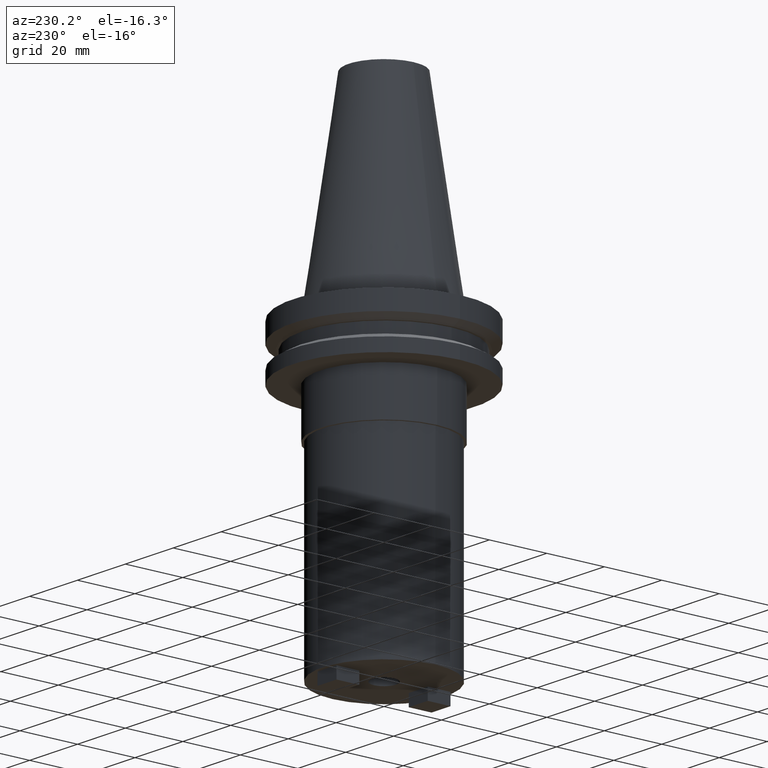
[diagram: clean part render]
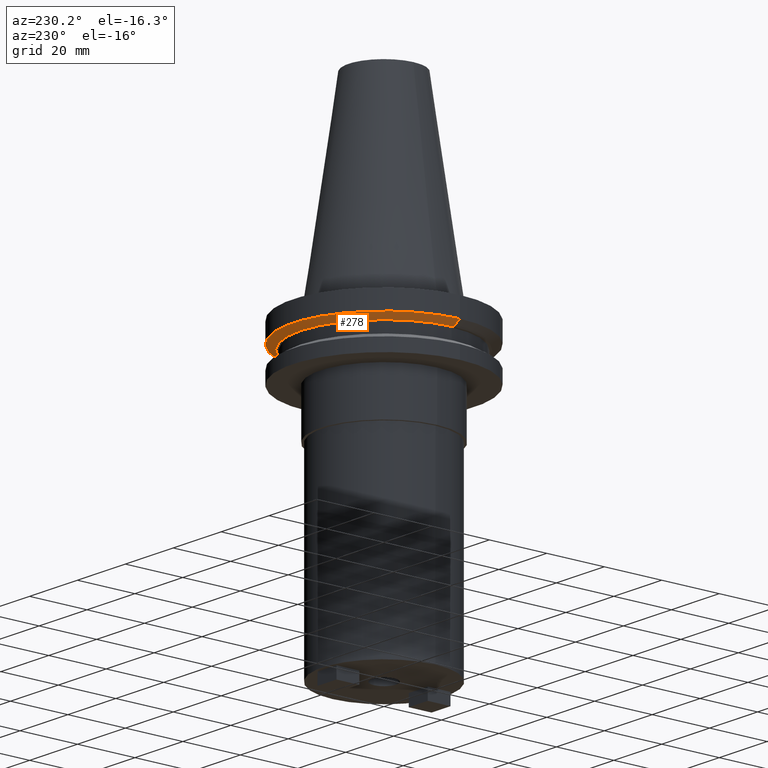
[diagram: same view with one face highlighted and labeled with its STEP entity id]
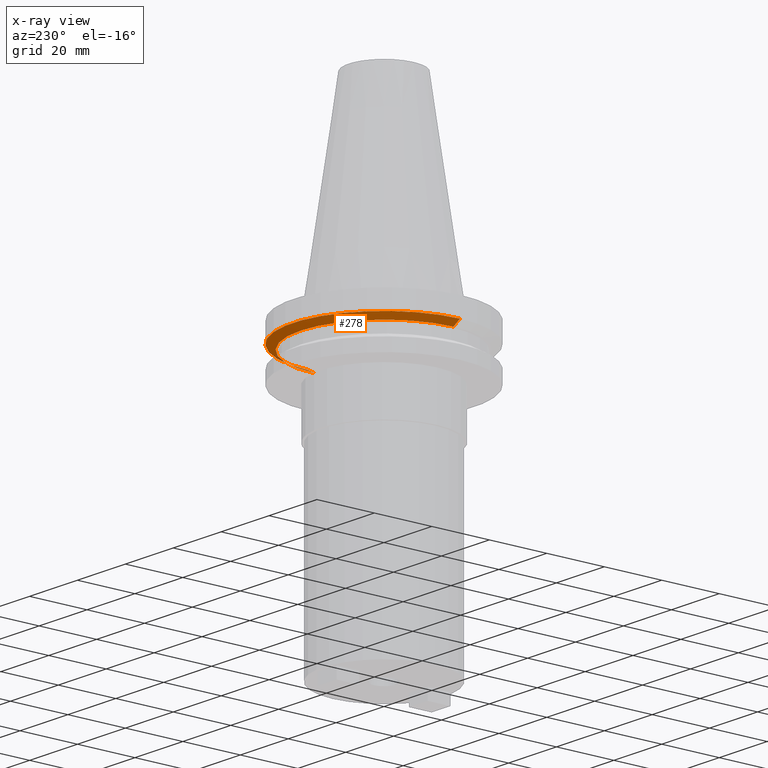
[diagram: x-ray of the same camera — body ghosted, the highlighted face saturated]
A machine part, auxiliary view. The second image highlights one B-rep face of the part: STEP entity #278.
The next image is the same camera in x-ray: the body ghosted, the highlighted face saturated — about 2% of this face is hidden behind the body in this view.
In plain terms, the highlighted conical surface has half-angle 60 deg.
Its self-contained STEP definition (entity closure, byte-faithful):
#8 = LINE ( 'NONE', #740, #287 ) ;
#82 = ORIENTED_EDGE ( 'NONE', *, *, #423, .T. ) ;
#159 = CIRCLE ( 'NONE', #1026, 28.97919780457007732 ) ;
#178 = VERTEX_POINT ( 'NONE', #234 ) ;
#198 = CARTESIAN_POINT ( 'NONE',  ( -28.97919780457007732, 3.718590885307660666E-15, -9.205000000000005400 ) ) ;
#213 = DIRECTION ( 'NONE',  ( 1.000000000000000000, 0.000000000000000000, 0.000000000000000000 ) ) ;
#219 = CARTESIAN_POINT ( 'NONE',  ( -31.75000000000000000, 3.888253587292846476E-15, -7.605276606597335842 ) ) ;
#234 = CARTESIAN_POINT ( 'NONE',  ( 31.75000000000000000, 0.000000000000000000, -7.605276606597335842 ) ) ;
#254 = CARTESIAN_POINT ( 'NONE',  ( 0.000000000000000000, 0.000000000000000000, -9.205000000000005400 ) ) ;
#268 = AXIS2_PLACEMENT_3D ( 'NONE', #254, #586, #920 ) ;
#276 = EDGE_CURVE ( 'NONE', #610, #178, #8, .T. ) ;
#278 = ADVANCED_FACE ( 'NONE', ( #1012 ), #838, .T. ) ;
#287 = VECTOR ( 'NONE', #341, 1000.000000000000000 ) ;
#295 = CARTESIAN_POINT ( 'NONE',  ( 0.000000000000000000, 0.000000000000000000, -9.205000000000005400 ) ) ;
#326 = EDGE_LOOP ( 'NONE', ( #82, #1074, #352, #488 ) ) ;
#341 = DIRECTION ( 'NONE',  ( 0.8660254037844389297, 0.000000000000000000, 0.4999999999999995004 ) ) ;
#352 = ORIENTED_EDGE ( 'NONE', *, *, #914, .F. ) ;
#358 = VERTEX_POINT ( 'NONE', #198 ) ;
#423 = EDGE_CURVE ( 'NONE', #610, #358, #159, .T. ) ;
#488 = ORIENTED_EDGE ( 'NONE', *, *, #276, .F. ) ;
#496 = VERTEX_POINT ( 'NONE', #219 ) ;
#498 = CARTESIAN_POINT ( 'NONE',  ( 0.000000000000000000, 0.000000000000000000, -7.605276606597335842 ) ) ;
#562 = AXIS2_PLACEMENT_3D ( 'NONE', #498, #682, #621 ) ;
#564 = DIRECTION ( 'NONE',  ( -0.8660254037844389297, 1.060575238724907285E-16, 0.4999999999999995004 ) ) ;
#585 = LINE ( 'NONE', #902, #726 ) ;
#586 = DIRECTION ( 'NONE',  ( -0.000000000000000000, -0.000000000000000000, 1.000000000000000000 ) ) ;
#610 = VERTEX_POINT ( 'NONE', #986 ) ;
#617 = EDGE_CURVE ( 'NONE', #358, #496, #585, .T. ) ;
#621 = DIRECTION ( 'NONE',  ( 1.000000000000000000, 0.000000000000000000, 0.000000000000000000 ) ) ;
#680 = CIRCLE ( 'NONE', #562, 31.75000000000000000 ) ;
#682 = DIRECTION ( 'NONE',  ( -0.000000000000000000, -0.000000000000000000, 1.000000000000000000 ) ) ;
#709 = DIRECTION ( 'NONE',  ( -0.000000000000000000, -0.000000000000000000, 1.000000000000000000 ) ) ;
#726 = VECTOR ( 'NONE', #564, 1000.000000000000000 ) ;
#740 = CARTESIAN_POINT ( 'NONE',  ( 28.97919780457007732, 0.000000000000000000, -9.205000000000005400 ) ) ;
#838 = CONICAL_SURFACE ( 'NONE', #268, 28.97919780457007732, 1.047197551196598297 ) ;
#902 = CARTESIAN_POINT ( 'NONE',  ( -28.97919780457007732, 3.548928183322474856E-15, -9.205000000000005400 ) ) ;
#914 = EDGE_CURVE ( 'NONE', #178, #496, #680, .T. ) ;
#920 = DIRECTION ( 'NONE',  ( 1.000000000000000000, 0.000000000000000000, 0.000000000000000000 ) ) ;
#986 = CARTESIAN_POINT ( 'NONE',  ( 28.97919780457007732, 0.000000000000000000, -9.205000000000005400 ) ) ;
#1012 = FACE_OUTER_BOUND ( 'NONE', #326, .T. ) ;
#1026 = AXIS2_PLACEMENT_3D ( 'NONE', #295, #709, #213 ) ;
#1074 = ORIENTED_EDGE ( 'NONE', *, *, #617, .T. ) ;